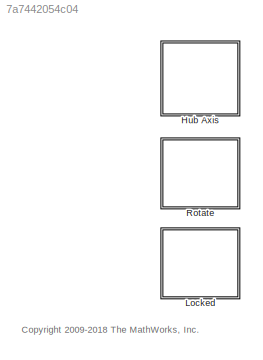
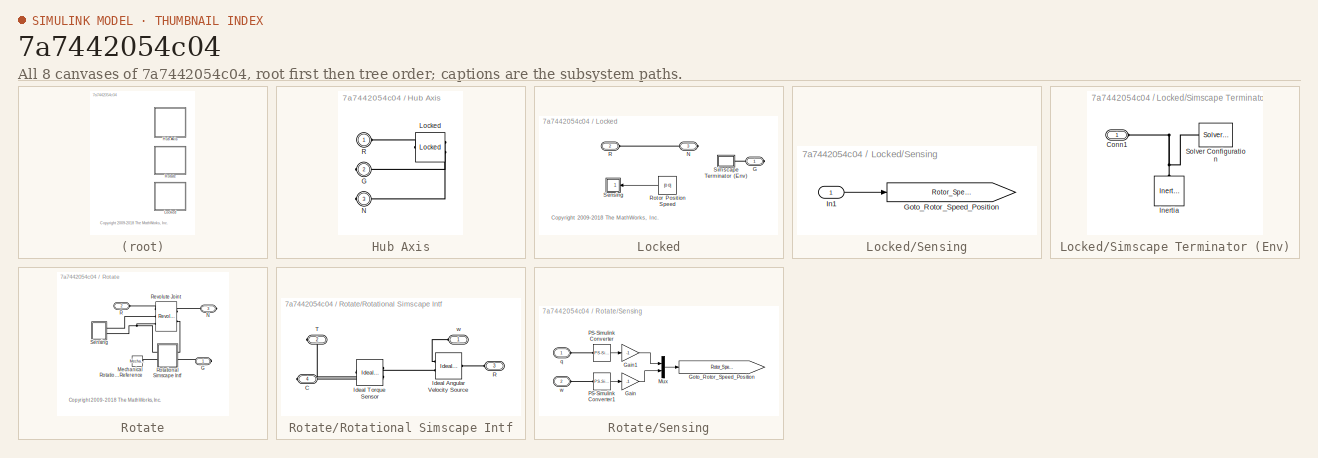
[diagram: thumbnail index - all 8 canvases of the model, root first then tree order]
MODEL slx_7a7442054c04
KIND library
CONFIG AbsTol = auto
CONFIG EnableMultiTasking = on
CONFIG FixedStep = auto
CONFIG MaxStep = auto
CONFIG MinStep = auto
CONFIG RelTol = 1e-3
CONFIG SampleTimeConstraint = Unconstrained
CONFIG Solver = ode45
CONFIG SolverName = ode45
CONFIG StartTime = 0.0
CONFIG StopTime = 10.0
BLOCK [SubSystem] Hub Axis
  BlockChoice = Locked
  MemberBlocks = Locked,Rotate
  Ports = [0, 0, 0, 0, 0, 1, 2]
  RequestExecContextInheritance = off
  TemplateBlock = self
BLOCK [PMIOPort] Hub Axis/G
  Port = 2
  Side = Right
BLOCK [Reference] Hub Axis/Locked  REF=$bdroot/Locked
  Ports = [0, 0, 0, 0, 0, 1, 2]
  SourceBlock = $bdroot/Locked
BLOCK [PMIOPort] Hub Axis/N
  Port = 3
  Side = Right
BLOCK [PMIOPort] Hub Axis/R
  Side = Left
BLOCK [SubSystem] Locked
  Ports = [0, 0, 0, 0, 0, 1, 2]
  RequestExecContextInheritance = off
BLOCK [PMIOPort] Locked/G
  Side = Right
BLOCK [PMIOPort] Locked/N
  Port = 3
  Side = Right
BLOCK [PMIOPort] Locked/R
  Port = 2
  Side = Left
BLOCK [Constant] Locked/Rotor Position Speed
  Value = [0 0]
BLOCK [SubSystem] Locked/Sensing
  Ports = [1]
  RequestExecContextInheritance = off
BLOCK [Goto] Locked/Sensing/Goto_Rotor_Speed_Position
  GotoTag = Rotor_Speed_Position
  TagVisibility = global
BLOCK [Inport] Locked/Sensing/In1
  IconDisplay = Port number
BLOCK [SubSystem] Locked/Simscape Terminator (Env)
  Ports = [0, 0, 0, 0, 0, 1]
  RequestExecContextInheritance = off
BLOCK [PMIOPort] Locked/Simscape Terminator (Env)/Conn1
  Side = Left
BLOCK [Reference] Locked/Simscape Terminator (Env)/Inertia  REF=fl_lib/Mechanical/Rotational Elements/Inertia
  Ports = [0, 0, 0, 0, 0, 1]
  SourceBlock = fl_lib/Mechanical/Rotational Elements/Inertia
  SourceProductBaseCode = SS
  SourceProductName = Simscape
  SourceType = Inertia
BLOCK [Reference] Locked/Simscape Terminator (Env)/Solver Configuration  REF=nesl_utility/Solver
Configuration
  Ports = [0, 0, 0, 0, 0, 0, 1]
  SourceBlock = nesl_utility/Solver\nConfiguration
  SourceProductBaseCode = SS
  SourceProductName = Simscape
  SourceType = Solver\nConfiguration
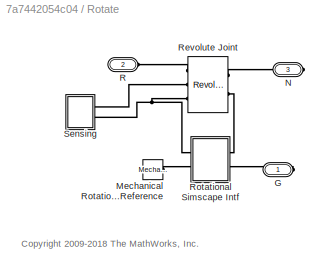
BLOCK [SubSystem] Rotate
  Ports = [0, 0, 0, 0, 0, 1, 2]
  RequestExecContextInheritance = off
BLOCK [PMIOPort] Rotate/G
  Side = Right
BLOCK [Reference] Rotate/Mechanical Rotational Reference  REF=fl_lib/Mechanical/Rotational Elements/Mechanical
Rotational Reference
  Ports = [0, 0, 0, 0, 0, 1]
  SourceBlock = fl_lib/Mechanical/Rotational Elements/Mechanical\nRotational Reference
  SourceProductBaseCode = SS
  SourceProductName = Simscape
  SourceType = Mechanical\nRotational Reference
BLOCK [PMIOPort] Rotate/N
  Port = 3
  Side = Right
BLOCK [PMIOPort] Rotate/R
  Port = 2
  Side = Left
BLOCK [Reference] Rotate/Revolute Joint  REF=sm_lib/Joints/Revolute Joint
  Ports = [0, 0, 0, 0, 0, 2, 3]
  SourceBlock = sm_lib/Joints/Revolute Joint
  SourceProductBaseCode = MS
  SourceProductName = Simscape Multibody
  SourceType = Revolute Joint
BLOCK [SubSystem] Rotate/Rotational Simscape Intf
  Ports = [0, 0, 0, 0, 0, 2, 2]
  RequestExecContextInheritance = off
BLOCK [PMIOPort] Rotate/Rotational Simscape Intf/C
  Port = 4
  Side = Right
BLOCK [Reference] Rotate/Rotational Simscape Intf/Ideal Angular Velocity Source  REF=fl_lib/Mechanical/Mechanical Sources/Ideal Angular
Velocity Source
  Ports = [0, 0, 0, 0, 0, 1, 2]
  SourceBlock = fl_lib/Mechanical/Mechanical Sources/Ideal Angular\nVelocity Source
  SourceProductBaseCode = SS
  SourceProductName = Simscape
  SourceType = Ideal Angular\nVelocity Source
BLOCK [Reference] Rotate/Rotational Simscape Intf/Ideal Torque Sensor  REF=fl_lib/Mechanical/Mechanical Sensors/Ideal Torque Sensor
  Ports = [0, 0, 0, 0, 0, 1, 2]
  SourceBlock = fl_lib/Mechanical/Mechanical Sensors/Ideal Torque Sensor
  SourceProductBaseCode = SS
  SourceProductName = Simscape
  SourceType = Ideal Torque Sensor
BLOCK [PMIOPort] Rotate/Rotational Simscape Intf/R
  Port = 3
  Side = Left
BLOCK [PMIOPort] Rotate/Rotational Simscape Intf/T
  Port = 2
  Side = Right
BLOCK [PMIOPort] Rotate/Rotational Simscape Intf/w
  Side = Left
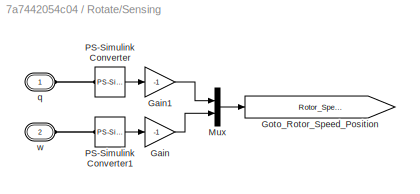
BLOCK [SubSystem] Rotate/Sensing
  Ports = [0, 0, 0, 0, 0, 2]
  RequestExecContextInheritance = off
BLOCK [Gain] Rotate/Sensing/Gain
  Gain = -1
  OutDataTypeStr = Inherit: Inherit via internal rule
  ParamDataTypeStr = Inherit: Inherit via internal rule
  SaturateOnIntegerOverflow = off
BLOCK [Gain] Rotate/Sensing/Gain1
  Gain = -1
  OutDataTypeStr = Inherit: Inherit via internal rule
  ParamDataTypeStr = Inherit: Inherit via internal rule
  SaturateOnIntegerOverflow = off
BLOCK [Goto] Rotate/Sensing/Goto_Rotor_Speed_Position
  GotoTag = Rotor_Speed_Position
  TagVisibility = global
BLOCK [Mux] Rotate/Sensing/Mux
  DisplayOption = bar
  Inputs = 2
  Ports = [2, 1]
BLOCK [Reference] Rotate/Sensing/PS-Simulink Converter  REF=nesl_utility/PS-Simulink
Converter
  Ports = [0, 1, 0, 0, 0, 1]
  SourceBlock = nesl_utility/PS-Simulink\nConverter
  SourceProductBaseCode = SS
  SourceProductName = Simscape
  SourceType = PS-Simulink\nConverter
BLOCK [Reference] Rotate/Sensing/PS-Simulink Converter1  REF=nesl_utility/PS-Simulink
Converter
  Ports = [0, 1, 0, 0, 0, 1]
  SourceBlock = nesl_utility/PS-Simulink\nConverter
  SourceProductBaseCode = SS
  SourceProductName = Simscape
  SourceType = PS-Simulink\nConverter
BLOCK [PMIOPort] Rotate/Sensing/q
  Side = Left
  Tag = PMCPort
BLOCK [PMIOPort] Rotate/Sensing/w
  Port = 2
  Side = Left
  Tag = PMCPort
ANNOTATION (root): <copyright redacted>
ANNOTATION Locked: <copyright redacted>
ANNOTATION Rotate: <copyright redacted>
LINE Locked/Rotor Position Speed:1 -> Locked/Sensing:1
LINE Locked/Sensing/In1:1 -> Locked/Sensing/Goto_Rotor_Speed_Position:1
LINE Rotate/Sensing/Gain1:1 -> Rotate/Sensing/Mux:1
LINE Rotate/Sensing/Gain:1 -> Rotate/Sensing/Mux:2
LINE Rotate/Sensing/Mux:1 -> Rotate/Sensing/Goto_Rotor_Speed_Position:1
LINE Rotate/Sensing/PS-Simulink Converter1:1 -> Rotate/Sensing/Gain:1
LINE Rotate/Sensing/PS-Simulink Converter:1 -> Rotate/Sensing/Gain1:1
PLINE Hub Axis/G:RConn1 -- Hub Axis/Locked:RConn1
PLINE Hub Axis/Locked:LConn1 -- Hub Axis/R:RConn1
PLINE Hub Axis/Locked:RConn2 -- Hub Axis/N:RConn1
PLINE Locked/G:RConn1 -- Locked/Simscape Terminator (Env):LConn1
PLINE Locked/N:RConn1 -- Locked/R:RConn1
PNET net1: Locked/Simscape Terminator (Env)/Conn1:RConn1 -- Locked/Simscape Terminator (Env)/Inertia:LConn1 -- Locked/Simscape Terminator (Env)/Solver Configuration:RConn1
PLINE Rotate/G:RConn1 -- Rotate/Rotational Simscape Intf:RConn2
PLINE Rotate/Mechanical Rotational Reference:LConn1 -- Rotate/Rotational Simscape Intf:LConn2
PLINE Rotate/N:RConn1 -- Rotate/Revolute Joint:LConn1
PLINE Rotate/R:RConn1 -- Rotate/Revolute Joint:RConn1
PLINE Rotate/Revolute Joint:LConn2 -- Rotate/Rotational Simscape Intf:RConn1
PLINE Rotate/Revolute Joint:RConn2 -- Rotate/Sensing:LConn1
PNET net2: Rotate/Revolute Joint:RConn3 -- Rotate/Rotational Simscape Intf:LConn1 -- Rotate/Sensing:LConn2
PLINE Rotate/Rotational Simscape Intf/C:RConn1 -- Rotate/Rotational Simscape Intf/Ideal Torque Sensor:RConn1
PLINE Rotate/Rotational Simscape Intf/Ideal Angular Velocity Source:LConn1 -- Rotate/Rotational Simscape Intf/R:RConn1
PLINE Rotate/Rotational Simscape Intf/Ideal Angular Velocity Source:RConn1 -- Rotate/Rotational Simscape Intf/w:RConn1
PLINE Rotate/Rotational Simscape Intf/Ideal Angular Velocity Source:RConn2 -- Rotate/Rotational Simscape Intf/Ideal Torque Sensor:LConn1
PLINE Rotate/Rotational Simscape Intf/Ideal Torque Sensor:RConn2 -- Rotate/Rotational Simscape Intf/T:RConn1
PLINE Rotate/Sensing/PS-Simulink Converter1:LConn1 -- Rotate/Sensing/w:RConn1
PLINE Rotate/Sensing/PS-Simulink Converter:LConn1 -- Rotate/Sensing/q:RConn1
note: PNET lines group multi-terminal physical nets as a canonical sorted terminal list (undirected conserving connections); 2-terminal nets keep the pairwise PLINE form
